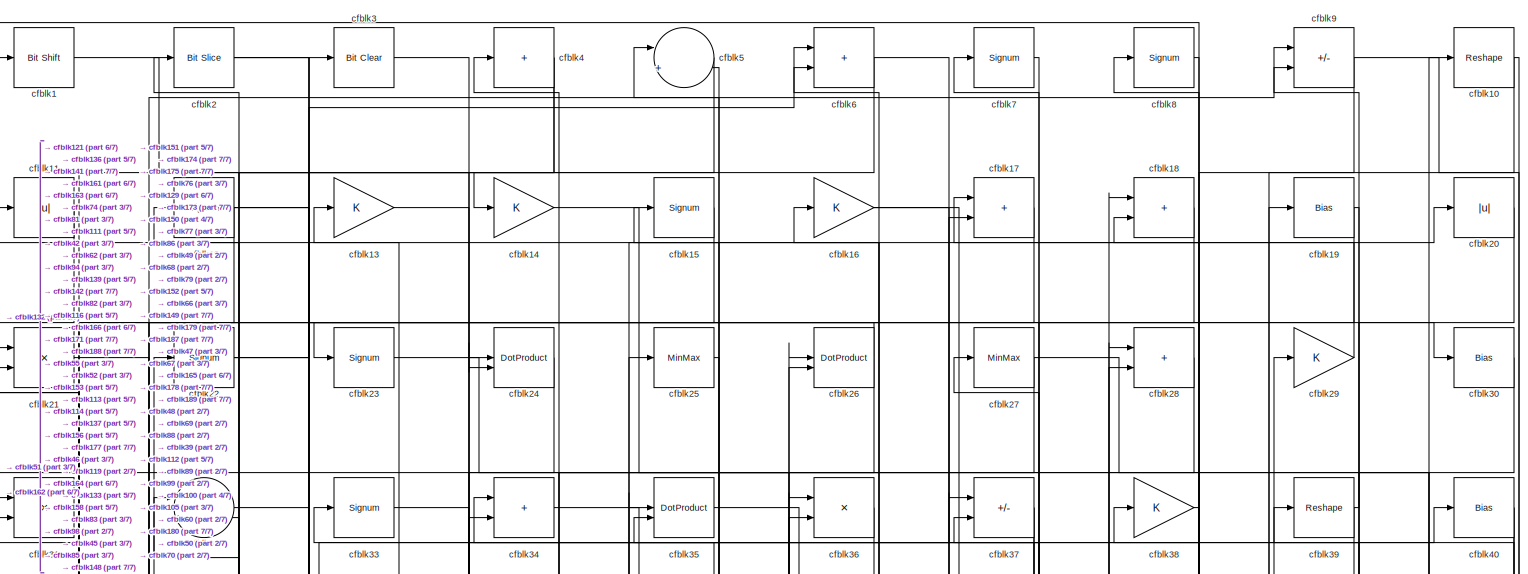
[diagram: root canvas - part 1/7, full width, top band]
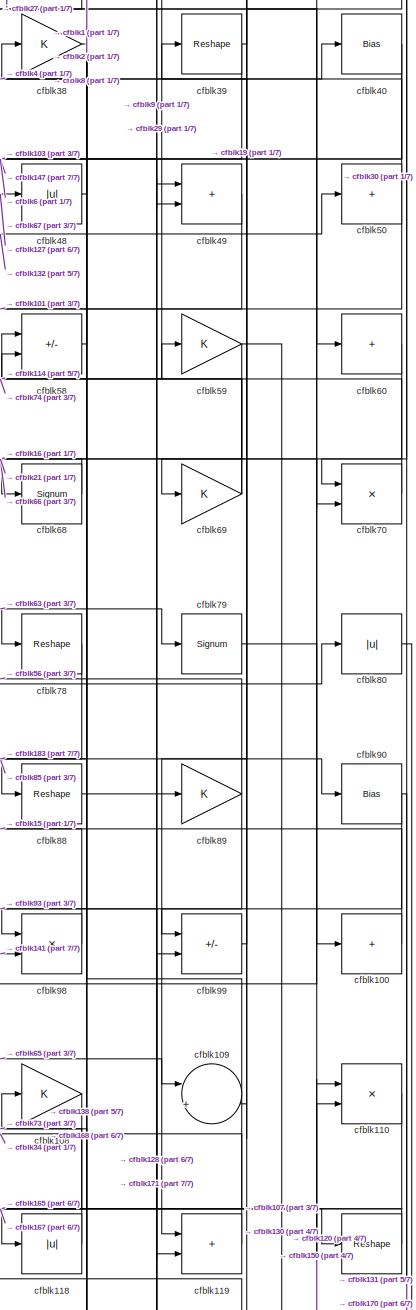
[diagram: root canvas - part 2/7, middle right region]
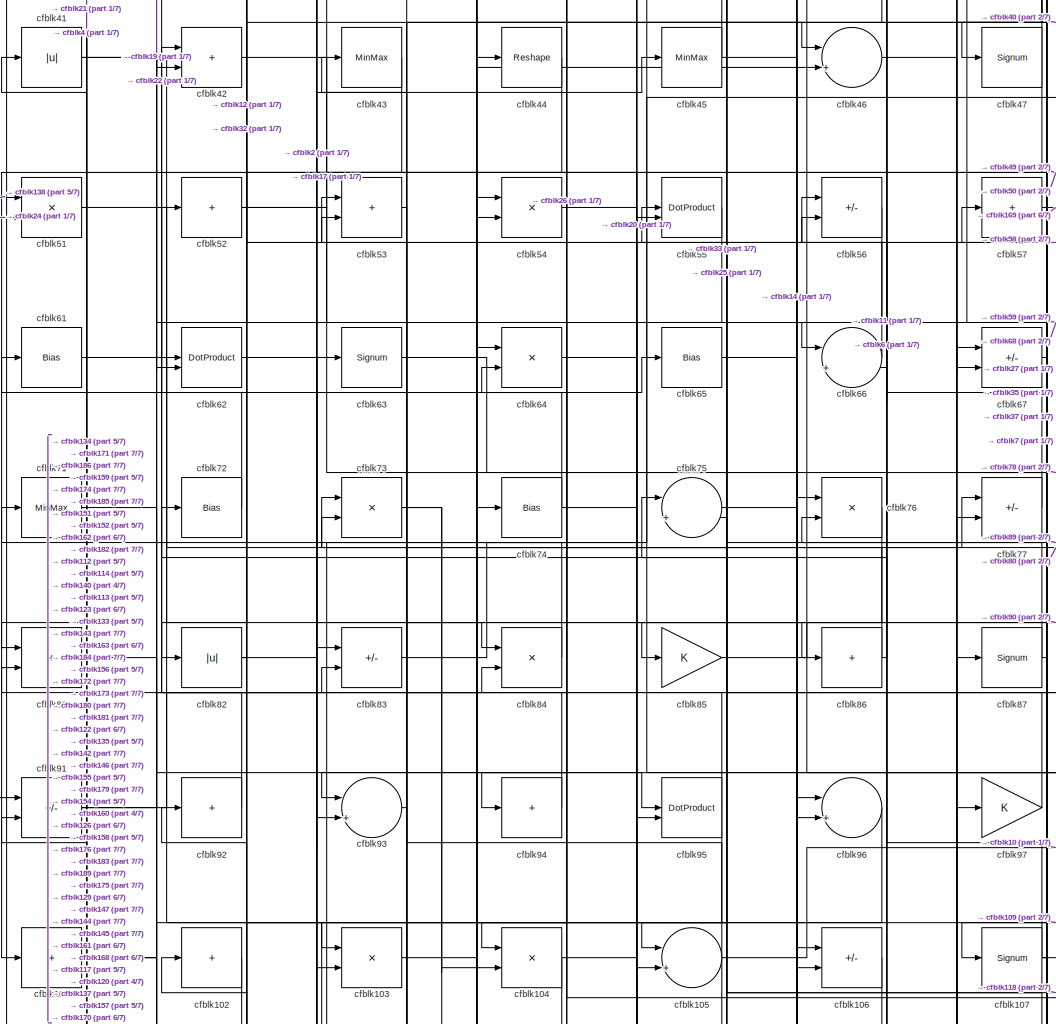
[diagram: root canvas - part 3/7, central region]
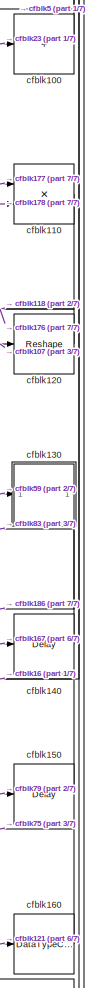
[diagram: root canvas - part 4/7, middle right region]
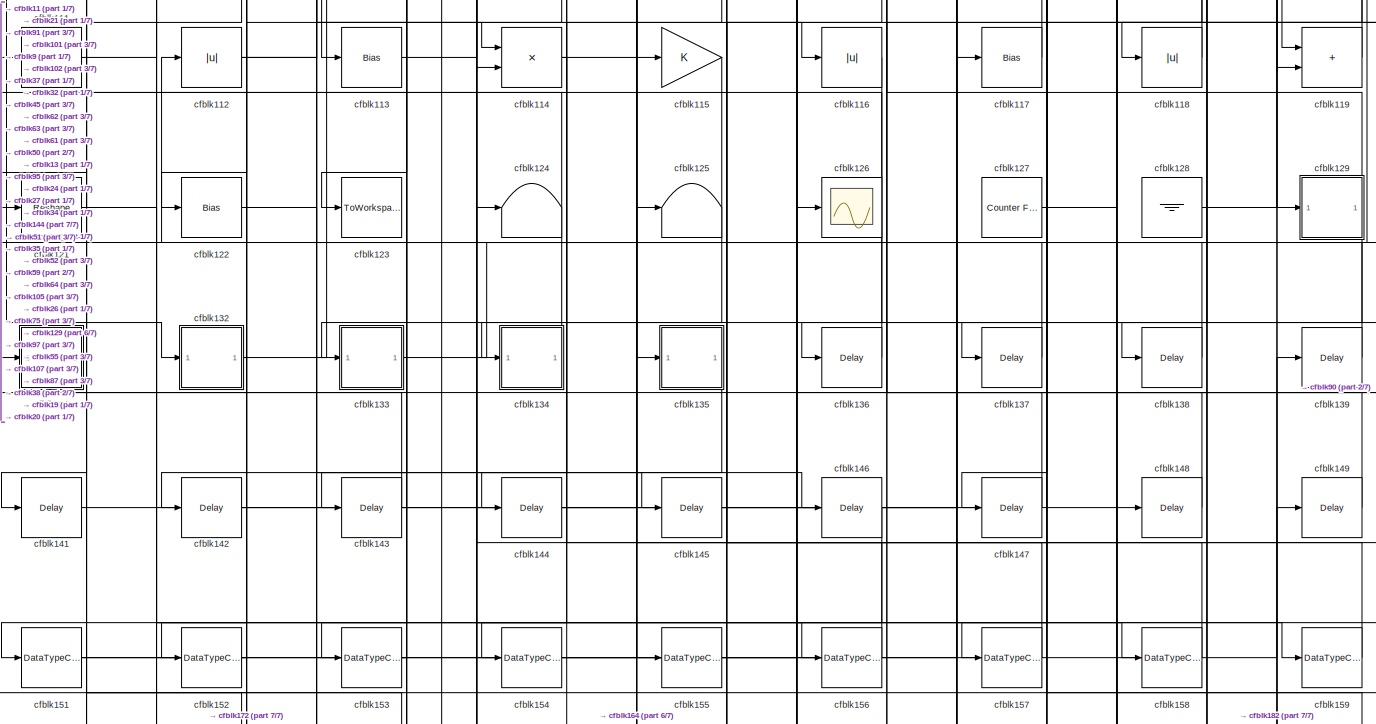
[diagram: root canvas - part 5/7, full width, bottom band]
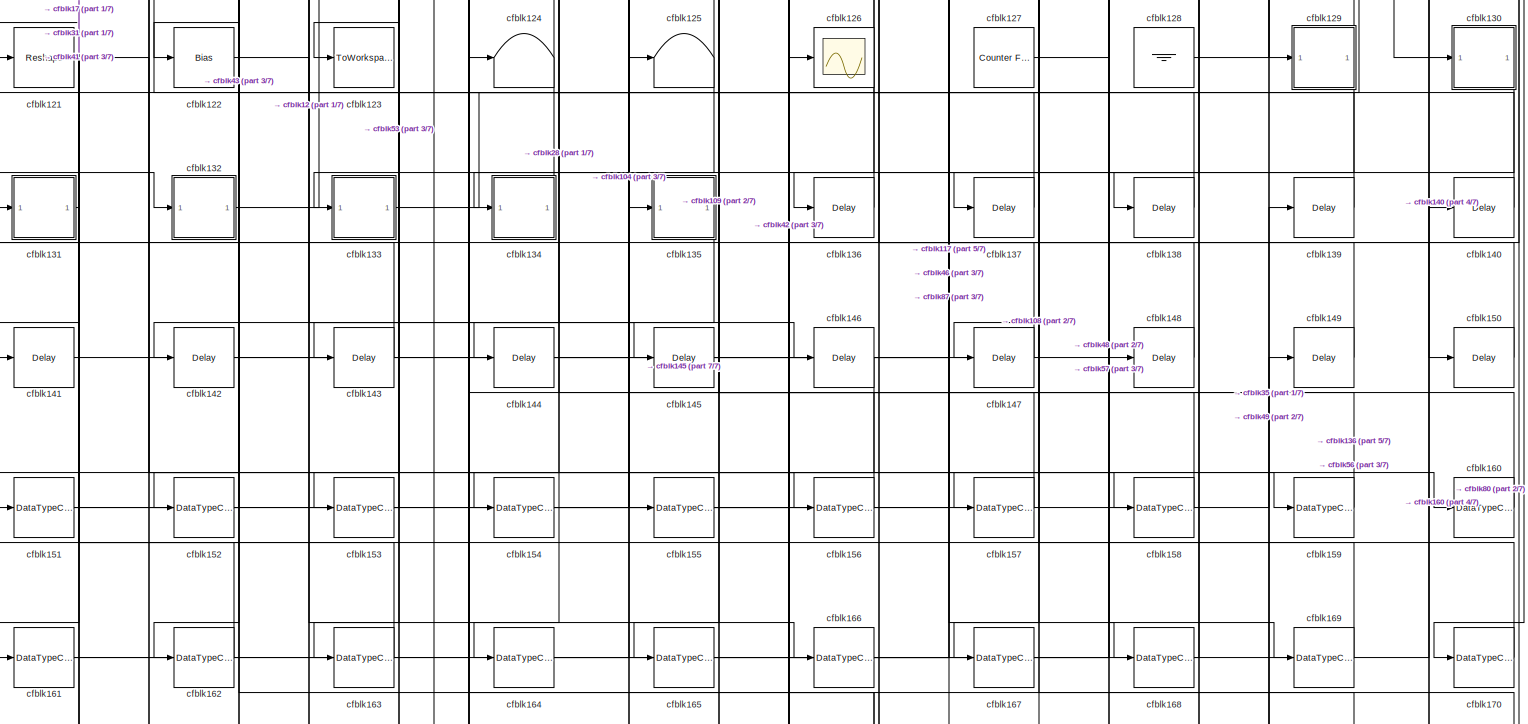
[diagram: root canvas - part 6/7, full width, bottom band]
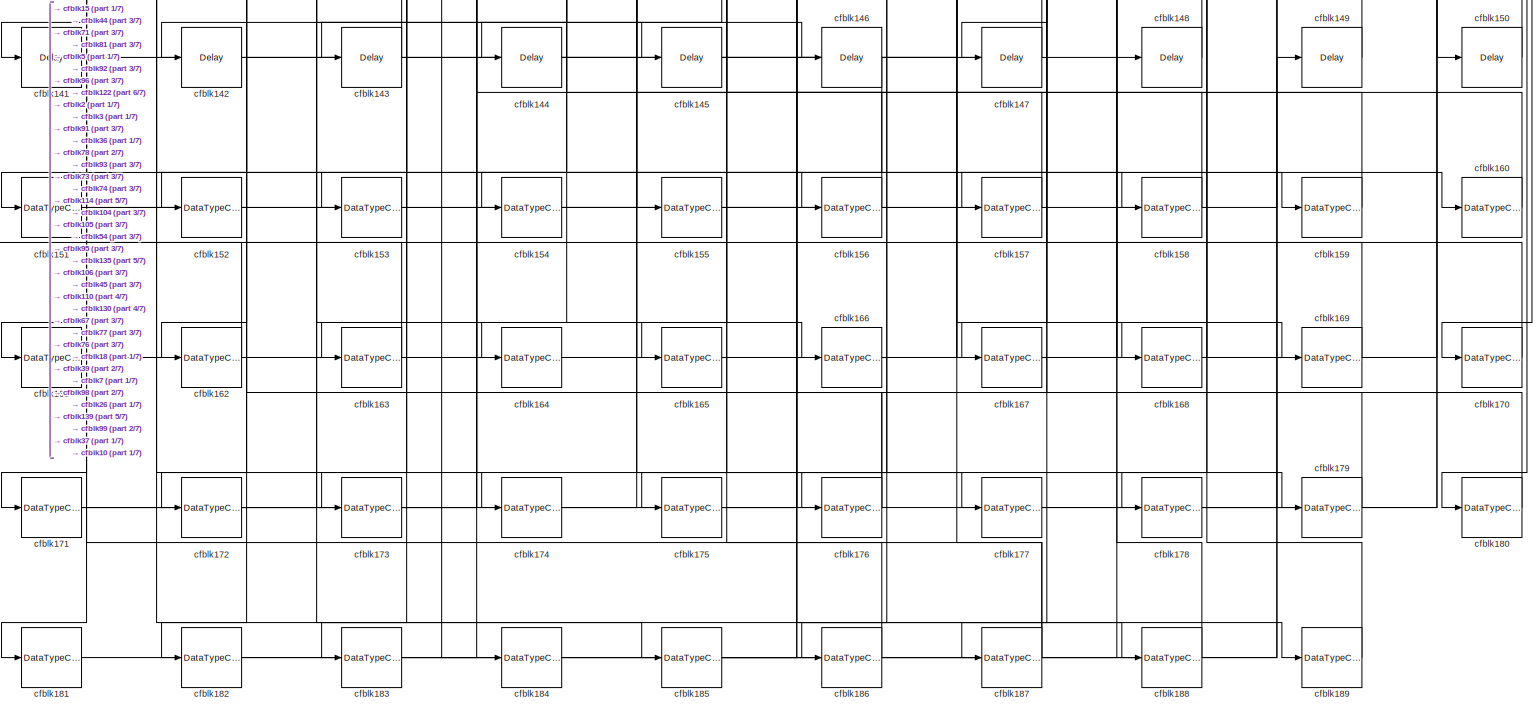
[diagram: root canvas - part 7/7, full width, bottom band]
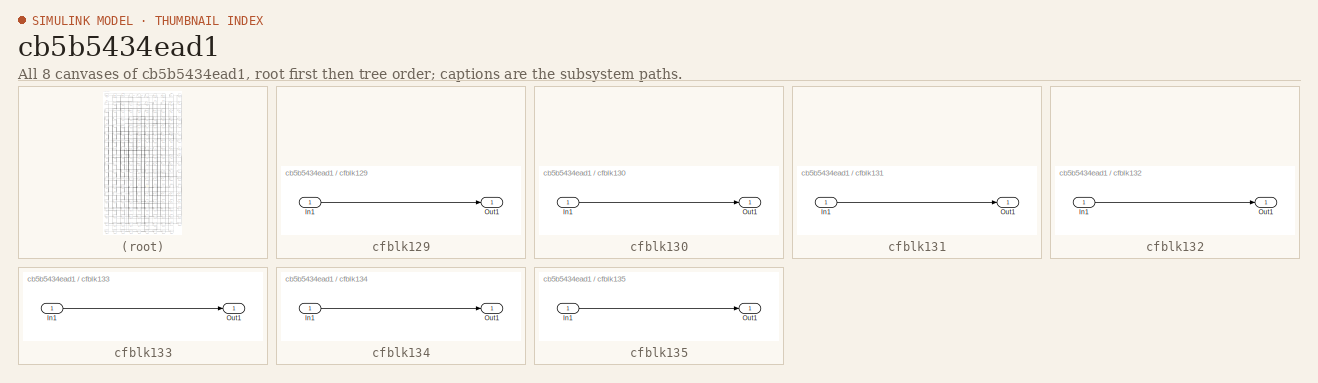
[diagram: thumbnail index - all 8 canvases of the model, root first then tree order]
MODEL slx_cb5b5434ead1
KIND model
CONFIG AbsTol = auto
CONFIG EnableMultiTasking = off
CONFIG FixedStep = auto
CONFIG MaxStep = auto
CONFIG MinStep = auto
CONFIG RelTol = 1e-3
CONFIG SampleTimeConstraint = Unconstrained
CONFIG SolverName = VariableStepAuto
CONFIG StartTime = 0.0
CONFIG StopTime = 10.0
BLOCK [Reference] cfblk1  REF=hdlsllib/Logic and Bit
Operations/Bit Shift
  SourceBlock = hdlsllib/Logic and Bit\nOperations/Bit Shift
  SourceType = Bit Shift
BLOCK [Reshape] cfblk10
BLOCK [Sum] cfblk100
  IconShape = rectangular
  Inputs = +
BLOCK [Sum] cfblk101
  IconShape = rectangular
  Inputs = +
BLOCK [Sum] cfblk102
  IconShape = rectangular
  Inputs = +
BLOCK [Product] cfblk103
  Inputs = */
  RndMeth = Zero
  SaturateOnIntegerOverflow = on
BLOCK [Product] cfblk104
  Inputs = */
  RndMeth = Zero
  SaturateOnIntegerOverflow = on
BLOCK [Sum] cfblk105
  Inputs = |++
BLOCK [Sum] cfblk106
  IconShape = rectangular
  Inputs = +-
BLOCK [Signum] cfblk107
BLOCK [Gain] cfblk108
BLOCK [Sum] cfblk109
  Inputs = |++
BLOCK [Abs] cfblk11
  SaturateOnIntegerOverflow = off
BLOCK [Product] cfblk110
  Inputs = */
  RndMeth = Zero
  SaturateOnIntegerOverflow = on
BLOCK [Sum] cfblk111
  IconShape = rectangular
  Inputs = +
BLOCK [Abs] cfblk112
  SaturateOnIntegerOverflow = off
BLOCK [Bias] cfblk113
  Bias = 0.0
  SaturateOnIntegerOverflow = off
BLOCK [Product] cfblk114
  Inputs = */
  RndMeth = Zero
  SaturateOnIntegerOverflow = on
BLOCK [Gain] cfblk115
BLOCK [Abs] cfblk116
  SaturateOnIntegerOverflow = off
BLOCK [Bias] cfblk117
  Bias = 0.0
  SaturateOnIntegerOverflow = off
BLOCK [Abs] cfblk118
  SaturateOnIntegerOverflow = off
BLOCK [Sum] cfblk119
  IconShape = rectangular
BLOCK [Signum] cfblk12
BLOCK [Reshape] cfblk120
BLOCK [Reshape] cfblk121
BLOCK [Bias] cfblk122
  Bias = 0.0
  SaturateOnIntegerOverflow = off
BLOCK [ToWorkspace] cfblk123
  MaxDataPoints = inf
  SampleTime = -1
  SaveFormat = Timeseries
  VariableName = simout
BLOCK [Terminator] cfblk124
BLOCK [Terminator] cfblk125
BLOCK [Scope] cfblk126
  Floating = off
  NumInputPorts = 1
  ScopeSpecificationString = Simulink.scopes.TimeScopeBlockCfg('CurrentConfiguration', extmgr.ConfigurationSet(extmgr.Configuration('Core','General UI',true),extmgr.Configuration('Core','Source UI',true),extmgr.Configuration('Sources','WiredSimulink',true,'DataLoggingVariableName','ScopeData2','DataLoggingSaveFormat','Array','DataLoggingLimitDataPoints',true,'DataLoggingDecimation','1'),extmgr.Configuration('Visuals','Time Do...<+868ch>
BLOCK [Reference] cfblk127  REF=hdlsllib/Sources/Counter
Free-Running
  SourceBlock = hdlsllib/Sources/Counter\nFree-Running
  SourceType = Counter Free-Running
BLOCK [Ground] cfblk128
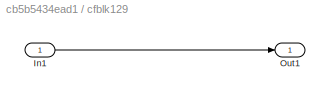
BLOCK [SubSystem] cfblk129
  LibrarySourceBlock = hdlsllib/Ports &\nSubsystems/Subsystem
BLOCK [Inport] cfblk129/In1
BLOCK [Outport] cfblk129/Out1
BLOCK [Gain] cfblk13
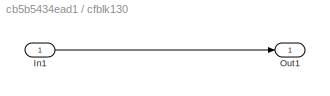
BLOCK [SubSystem] cfblk130
  LibrarySourceBlock = hdlsllib/Ports &\nSubsystems/Subsystem
BLOCK [Inport] cfblk130/In1
BLOCK [Outport] cfblk130/Out1
BLOCK [SubSystem] cfblk131
  LibrarySourceBlock = hdlsllib/Ports &\nSubsystems/Subsystem
BLOCK [Inport] cfblk131/In1
BLOCK [Outport] cfblk131/Out1
BLOCK [SubSystem] cfblk132
  LibrarySourceBlock = hdlsllib/Ports &\nSubsystems/Subsystem
BLOCK [Inport] cfblk132/In1
BLOCK [Outport] cfblk132/Out1
BLOCK [SubSystem] cfblk133
  LibrarySourceBlock = hdlsllib/Ports &\nSubsystems/Subsystem
BLOCK [Inport] cfblk133/In1
BLOCK [Outport] cfblk133/Out1
BLOCK [SubSystem] cfblk134
  LibrarySourceBlock = hdlsllib/Ports &\nSubsystems/Subsystem
BLOCK [Inport] cfblk134/In1
BLOCK [Outport] cfblk134/Out1
BLOCK [SubSystem] cfblk135
  LibrarySourceBlock = hdlsllib/Ports &\nSubsystems/Subsystem
BLOCK [Inport] cfblk135/In1
BLOCK [Outport] cfblk135/Out1
BLOCK [Delay] cfblk136
  InputPortMap = u0
  SampleTime = 1
BLOCK [Delay] cfblk137
  InputPortMap = u0
  SampleTime = 1
BLOCK [Delay] cfblk138
  InputPortMap = u0
  SampleTime = 1
BLOCK [Delay] cfblk139
  InputPortMap = u0
  SampleTime = 1
BLOCK [Gain] cfblk14
BLOCK [Delay] cfblk140
  InputPortMap = u0
  SampleTime = 1
BLOCK [Delay] cfblk141
  InputPortMap = u0
  SampleTime = 1
BLOCK [Delay] cfblk142
  InputPortMap = u0
  SampleTime = 1
BLOCK [Delay] cfblk143
  InputPortMap = u0
  SampleTime = 1
BLOCK [Delay] cfblk144
  InputPortMap = u0
  SampleTime = 1
BLOCK [Delay] cfblk145
  InputPortMap = u0
  SampleTime = 1
BLOCK [Delay] cfblk146
  InputPortMap = u0
  SampleTime = 1
BLOCK [Delay] cfblk147
  InputPortMap = u0
  SampleTime = 1
BLOCK [Delay] cfblk148
  InputPortMap = u0
  SampleTime = 1
BLOCK [Delay] cfblk149
  InputPortMap = u0
  SampleTime = 1
BLOCK [Signum] cfblk15
BLOCK [Delay] cfblk150
  InputPortMap = u0
  SampleTime = 1
BLOCK [DataTypeConversion] cfblk151
  RndMeth = Floor
  SaturateOnIntegerOverflow = off
BLOCK [DataTypeConversion] cfblk152
  OutDataTypeStr = uint8
  RndMeth = Floor
  SaturateOnIntegerOverflow = off
BLOCK [DataTypeConversion] cfblk153
  OutDataTypeStr = uint8
  RndMeth = Floor
  SaturateOnIntegerOverflow = off
BLOCK [DataTypeConversion] cfblk154
  OutDataTypeStr = uint8
  RndMeth = Floor
  SaturateOnIntegerOverflow = off
BLOCK [DataTypeConversion] cfblk155
  OutDataTypeStr = uint8
  RndMeth = Floor
  SaturateOnIntegerOverflow = off
BLOCK [DataTypeConversion] cfblk156
  OutDataTypeStr = uint8
  RndMeth = Floor
  SaturateOnIntegerOverflow = off
BLOCK [DataTypeConversion] cfblk157
  OutDataTypeStr = uint8
  RndMeth = Floor
  SaturateOnIntegerOverflow = off
BLOCK [DataTypeConversion] cfblk158
  OutDataTypeStr = uint8
  RndMeth = Floor
  SaturateOnIntegerOverflow = off
BLOCK [DataTypeConversion] cfblk159
  OutDataTypeStr = uint8
  RndMeth = Floor
  SaturateOnIntegerOverflow = off
BLOCK [Gain] cfblk16
BLOCK [DataTypeConversion] cfblk160
  OutDataTypeStr = uint8
  RndMeth = Floor
  SaturateOnIntegerOverflow = off
BLOCK [DataTypeConversion] cfblk161
  RndMeth = Floor
  SaturateOnIntegerOverflow = off
BLOCK [DataTypeConversion] cfblk162
  OutDataTypeStr = uint8
  RndMeth = Floor
  SaturateOnIntegerOverflow = off
BLOCK [DataTypeConversion] cfblk163
  OutDataTypeStr = uint8
  RndMeth = Floor
  SaturateOnIntegerOverflow = off
BLOCK [DataTypeConversion] cfblk164
  RndMeth = Floor
  SaturateOnIntegerOverflow = off
BLOCK [DataTypeConversion] cfblk165
  OutDataTypeStr = uint8
  RndMeth = Floor
  SaturateOnIntegerOverflow = off
BLOCK [DataTypeConversion] cfblk166
  OutDataTypeStr = uint8
  RndMeth = Floor
  SaturateOnIntegerOverflow = off
BLOCK [DataTypeConversion] cfblk167
  OutDataTypeStr = uint8
  RndMeth = Floor
  SaturateOnIntegerOverflow = off
BLOCK [DataTypeConversion] cfblk168
  OutDataTypeStr = uint8
  RndMeth = Floor
  SaturateOnIntegerOverflow = off
BLOCK [DataTypeConversion] cfblk169
  OutDataTypeStr = uint8
  RndMeth = Floor
  SaturateOnIntegerOverflow = off
BLOCK [Sum] cfblk17
  IconShape = rectangular
BLOCK [DataTypeConversion] cfblk170
  OutDataTypeStr = uint8
  RndMeth = Floor
  SaturateOnIntegerOverflow = off
BLOCK [DataTypeConversion] cfblk171
  RndMeth = Floor
  SaturateOnIntegerOverflow = off
BLOCK [DataTypeConversion] cfblk172
  OutDataTypeStr = uint8
  RndMeth = Floor
  SaturateOnIntegerOverflow = off
BLOCK [DataTypeConversion] cfblk173
  OutDataTypeStr = uint8
  RndMeth = Floor
  SaturateOnIntegerOverflow = off
BLOCK [DataTypeConversion] cfblk174
  OutDataTypeStr = uint8
  RndMeth = Floor
  SaturateOnIntegerOverflow = off
BLOCK [DataTypeConversion] cfblk175
  OutDataTypeStr = uint8
  RndMeth = Floor
  SaturateOnIntegerOverflow = off
BLOCK [DataTypeConversion] cfblk176
  RndMeth = Floor
  SaturateOnIntegerOverflow = off
BLOCK [DataTypeConversion] cfblk177
  OutDataTypeStr = uint8
  RndMeth = Floor
  SaturateOnIntegerOverflow = off
BLOCK [DataTypeConversion] cfblk178
  OutDataTypeStr = uint8
  RndMeth = Floor
  SaturateOnIntegerOverflow = off
BLOCK [DataTypeConversion] cfblk179
  OutDataTypeStr = uint8
  RndMeth = Floor
  SaturateOnIntegerOverflow = off
BLOCK [Sum] cfblk18
  IconShape = rectangular
BLOCK [DataTypeConversion] cfblk180
  OutDataTypeStr = uint8
  RndMeth = Floor
  SaturateOnIntegerOverflow = off
BLOCK [DataTypeConversion] cfblk181
  OutDataTypeStr = uint8
  RndMeth = Floor
  SaturateOnIntegerOverflow = off
BLOCK [DataTypeConversion] cfblk182
  OutDataTypeStr = uint8
  RndMeth = Floor
  SaturateOnIntegerOverflow = off
BLOCK [DataTypeConversion] cfblk183
  OutDataTypeStr = uint8
  RndMeth = Floor
  SaturateOnIntegerOverflow = off
BLOCK [DataTypeConversion] cfblk184
  OutDataTypeStr = uint8
  RndMeth = Floor
  SaturateOnIntegerOverflow = off
BLOCK [DataTypeConversion] cfblk185
  RndMeth = Floor
  SaturateOnIntegerOverflow = off
BLOCK [DataTypeConversion] cfblk186
  OutDataTypeStr = uint8
  RndMeth = Floor
  SaturateOnIntegerOverflow = off
BLOCK [DataTypeConversion] cfblk187
  RndMeth = Floor
  SaturateOnIntegerOverflow = off
BLOCK [DataTypeConversion] cfblk188
  OutDataTypeStr = uint8
  RndMeth = Floor
  SaturateOnIntegerOverflow = off
BLOCK [DataTypeConversion] cfblk189
  OutDataTypeStr = uint8
  RndMeth = Floor
  SaturateOnIntegerOverflow = off
BLOCK [Bias] cfblk19
  Bias = 0.0
  SaturateOnIntegerOverflow = off
BLOCK [Reference] cfblk2  REF=hdlsllib/Logic and Bit
Operations/Bit Slice
  SourceBlock = hdlsllib/Logic and Bit\nOperations/Bit Slice
  SourceType = Bit Slice
BLOCK [Abs] cfblk20
  SaturateOnIntegerOverflow = off
BLOCK [Product] cfblk21
  Inputs = */
  RndMeth = Zero
  SaturateOnIntegerOverflow = on
BLOCK [Signum] cfblk22
BLOCK [Signum] cfblk23
BLOCK [DotProduct] cfblk24
  OutDataTypeStr = Inherit: Inherit via internal rule
BLOCK [MinMax] cfblk25
BLOCK [DotProduct] cfblk26
  OutDataTypeStr = Inherit: Inherit via internal rule
BLOCK [MinMax] cfblk27
BLOCK [Sum] cfblk28
  IconShape = rectangular
BLOCK [Gain] cfblk29
BLOCK [Reference] cfblk3  REF=simulink/Logic and Bit
Operations/Bit Clear
  LibrarySourceBlock = hdlsllib/Logic and Bit\nOperations/Bit Clear
  SourceBlock = simulink/Logic and Bit\nOperations/Bit Clear
  SourceType = Bit Clear
BLOCK [Bias] cfblk30
  Bias = 0.0
  SaturateOnIntegerOverflow = off
BLOCK [Product] cfblk31
  Inputs = */
  RndMeth = Zero
  SaturateOnIntegerOverflow = on
BLOCK [Sum] cfblk32
  Inputs = |++
BLOCK [Signum] cfblk33
BLOCK [Sum] cfblk34
  IconShape = rectangular
BLOCK [DotProduct] cfblk35
  OutDataTypeStr = Inherit: Inherit via internal rule
BLOCK [Product] cfblk36
  Inputs = */
  RndMeth = Zero
  SaturateOnIntegerOverflow = on
BLOCK [Sum] cfblk37
  IconShape = rectangular
  Inputs = +-
BLOCK [Gain] cfblk38
BLOCK [Reshape] cfblk39
BLOCK [Sum] cfblk4
  IconShape = rectangular
  Inputs = +
BLOCK [Bias] cfblk40
  Bias = 0.0
  SaturateOnIntegerOverflow = off
BLOCK [Abs] cfblk41
  SaturateOnIntegerOverflow = off
BLOCK [Sum] cfblk42
  IconShape = rectangular
BLOCK [MinMax] cfblk43
BLOCK [Reshape] cfblk44
BLOCK [MinMax] cfblk45
BLOCK [Sum] cfblk46
  Inputs = |++
BLOCK [Signum] cfblk47
BLOCK [Abs] cfblk48
  SaturateOnIntegerOverflow = off
BLOCK [Sum] cfblk49
  IconShape = rectangular
BLOCK [Sum] cfblk5
  Inputs = |++
BLOCK [Sum] cfblk50
  IconShape = rectangular
  Inputs = +
BLOCK [Product] cfblk51
  Inputs = */
  RndMeth = Zero
  SaturateOnIntegerOverflow = on
BLOCK [Sum] cfblk52
  IconShape = rectangular
  Inputs = +
BLOCK [Sum] cfblk53
  IconShape = rectangular
BLOCK [Product] cfblk54
  Inputs = */
  RndMeth = Zero
  SaturateOnIntegerOverflow = on
BLOCK [DotProduct] cfblk55
  OutDataTypeStr = Inherit: Inherit via internal rule
BLOCK [Sum] cfblk56
  IconShape = rectangular
  Inputs = +-
BLOCK [Sum] cfblk57
  IconShape = rectangular
  Inputs = +
BLOCK [Sum] cfblk58
  IconShape = rectangular
  Inputs = +-
BLOCK [Gain] cfblk59
BLOCK [Sum] cfblk6
  IconShape = rectangular
BLOCK [Sum] cfblk60
  IconShape = rectangular
  Inputs = +
BLOCK [Bias] cfblk61
  Bias = 0.0
  SaturateOnIntegerOverflow = off
BLOCK [DotProduct] cfblk62
  OutDataTypeStr = Inherit: Inherit via internal rule
BLOCK [Signum] cfblk63
BLOCK [Product] cfblk64
  Inputs = */
  RndMeth = Zero
  SaturateOnIntegerOverflow = on
BLOCK [Bias] cfblk65
  Bias = 0.0
  SaturateOnIntegerOverflow = off
BLOCK [Sum] cfblk66
  Inputs = |++
BLOCK [Sum] cfblk67
  IconShape = rectangular
  Inputs = +-
BLOCK [Signum] cfblk68
BLOCK [Gain] cfblk69
BLOCK [Signum] cfblk7
BLOCK [Product] cfblk70
  Inputs = */
  RndMeth = Zero
  SaturateOnIntegerOverflow = on
BLOCK [MinMax] cfblk71
BLOCK [Bias] cfblk72
  Bias = 0.0
  SaturateOnIntegerOverflow = off
BLOCK [Product] cfblk73
  Inputs = */
  RndMeth = Zero
  SaturateOnIntegerOverflow = on
BLOCK [Bias] cfblk74
  Bias = 0.0
  SaturateOnIntegerOverflow = off
BLOCK [Sum] cfblk75
  Inputs = |++
BLOCK [Product] cfblk76
  Inputs = */
  RndMeth = Zero
  SaturateOnIntegerOverflow = on
BLOCK [Sum] cfblk77
  IconShape = rectangular
  Inputs = +-
BLOCK [Reshape] cfblk78
BLOCK [Signum] cfblk79
BLOCK [Signum] cfblk8
BLOCK [Abs] cfblk80
  SaturateOnIntegerOverflow = off
BLOCK [Sum] cfblk81
  IconShape = rectangular
BLOCK [Abs] cfblk82
  SaturateOnIntegerOverflow = off
BLOCK [Sum] cfblk83
  IconShape = rectangular
  Inputs = +-
BLOCK [Product] cfblk84
  Inputs = */
  RndMeth = Zero
  SaturateOnIntegerOverflow = on
BLOCK [Gain] cfblk85
BLOCK [Sum] cfblk86
  IconShape = rectangular
  Inputs = +
BLOCK [Signum] cfblk87
BLOCK [Reshape] cfblk88
BLOCK [Gain] cfblk89
BLOCK [Sum] cfblk9
  IconShape = rectangular
  Inputs = +-
BLOCK [Bias] cfblk90
  Bias = 0.0
  SaturateOnIntegerOverflow = off
BLOCK [Sum] cfblk91
  IconShape = rectangular
  Inputs = +-
BLOCK [Sum] cfblk92
  IconShape = rectangular
  Inputs = +
BLOCK [Sum] cfblk93
  Inputs = |++
BLOCK [Sum] cfblk94
  IconShape = rectangular
  Inputs = +
BLOCK [DotProduct] cfblk95
  OutDataTypeStr = Inherit: Inherit via internal rule
BLOCK [Sum] cfblk96
  Inputs = |++
BLOCK [Gain] cfblk97
BLOCK [Product] cfblk98
  Inputs = */
  RndMeth = Zero
  SaturateOnIntegerOverflow = on
BLOCK [Sum] cfblk99
  IconShape = rectangular
  Inputs = +-
LINE cfblk100:1 -> cfblk5:1
NET cfblk101:1 -> cfblk106:2, cfblk159:1
LINE cfblk102:1 -> cfblk151:1
LINE cfblk103:1 -> cfblk80:1
NET cfblk104:1 -> cfblk122:1, cfblk146:1
NET cfblk105:1 -> cfblk10:1, cfblk154:1, cfblk53:1
LINE cfblk106:1 -> cfblk175:1
NET cfblk107:1 -> cfblk120:1, cfblk157:1, cfblk72:1
LINE cfblk108:1 -> cfblk167:1
NET cfblk109:1 -> cfblk165:1, cfblk58:2
NET cfblk10:1 -> cfblk178:1, cfblk180:1
LINE cfblk110:1 -> cfblk176:1
LINE cfblk111:1 -> cfblk9:1
NET cfblk112:1 -> cfblk45:1, cfblk63:1
LINE cfblk113:1 -> cfblk34:2
NET cfblk114:1 -> cfblk144:1, cfblk59:1
LINE cfblk115:1 -> cfblk153:1
LINE cfblk116:1 -> cfblk134:1
LINE cfblk117:1 -> cfblk55:1
LINE cfblk118:1 -> cfblk73:2
LINE cfblk119:1 -> cfblk34:1
LINE cfblk11:1 -> cfblk132:1
LINE cfblk120:1 -> cfblk118:1
LINE cfblk121:1 -> cfblk160:1
LINE cfblk122:1 -> cfblk145:1
LINE cfblk127:1 -> cfblk48:1
LINE cfblk128:1 -> cfblk49:1
LINE cfblk129/In1:1 -> cfblk129/Out1:1
NET cfblk129:1 -> cfblk136:1, cfblk56:1
NET cfblk12:1 -> cfblk166:1, cfblk42:2, cfblk86:1
LINE cfblk130/In1:1 -> cfblk130/Out1:1
LINE cfblk130:1 -> cfblk186:1
LINE cfblk131/In1:1 -> cfblk131/Out1:1
LINE cfblk131:1 -> cfblk111:1
LINE cfblk132/In1:1 -> cfblk132/Out1:1
LINE cfblk132:1 -> cfblk50:1
LINE cfblk133/In1:1 -> cfblk133/Out1:1
LINE cfblk133:1 -> cfblk25:1
LINE cfblk134/In1:1 -> cfblk134/Out1:1
LINE cfblk134:1 -> cfblk91:2
LINE cfblk135/In1:1 -> cfblk135/Out1:1
LINE cfblk135:1 -> cfblk172:1
LINE cfblk136:1 -> cfblk21:2
LINE cfblk137:1 -> cfblk24:1
LINE cfblk138:1 -> cfblk51:1
LINE cfblk139:1 -> cfblk32:1
LINE cfblk13:1 -> cfblk156:1
LINE cfblk140:1 -> cfblk83:1
LINE cfblk141:1 -> cfblk98:2
LINE cfblk142:1 -> cfblk105:2
LINE cfblk143:1 -> cfblk91:1
LINE cfblk144:1 -> cfblk67:1
LINE cfblk145:1 -> cfblk77:2
LINE cfblk146:1 -> cfblk181:1
LINE cfblk147:1 -> cfblk76:2
LINE cfblk148:1 -> cfblk26:1
LINE cfblk149:1 -> cfblk37:2
LINE cfblk14:1 -> cfblk76:1
LINE cfblk150:1 -> cfblk16:1
NET cfblk151:1 -> cfblk19:1, cfblk26:2
LINE cfblk152:1 -> cfblk102:1
LINE cfblk153:1 -> cfblk13:1
LINE cfblk154:1 -> cfblk115:1
LINE cfblk155:1 -> cfblk97:1
LINE cfblk156:1 -> cfblk64:1
LINE cfblk157:1 -> cfblk64:2
LINE cfblk158:1 -> cfblk35:1
LINE cfblk159:1 -> cfblk75:1
LINE cfblk15:1 -> cfblk141:1
LINE cfblk160:1 -> cfblk75:2
NET cfblk161:1 -> cfblk124:1, cfblk87:1
LINE cfblk162:1 -> cfblk31:1
LINE cfblk163:1 -> cfblk31:2
NET cfblk164:1 -> cfblk117:1, cfblk125:1
LINE cfblk165:1 -> cfblk28:1
LINE cfblk166:1 -> cfblk28:2
LINE cfblk167:1 -> cfblk140:1
LINE cfblk168:1 -> cfblk108:1
LINE cfblk169:1 -> cfblk41:1
NET cfblk16:1 -> cfblk68:1, cfblk79:1
LINE cfblk170:1 -> cfblk57:1
NET cfblk171:1 -> cfblk3:1, cfblk95:2, cfblk99:2
LINE cfblk172:1 -> cfblk44:1
LINE cfblk173:1 -> cfblk74:1
LINE cfblk174:1 -> cfblk36:1
LINE cfblk175:1 -> cfblk36:2
NET cfblk176:1 -> cfblk106:1, cfblk92:1
LINE cfblk177:1 -> cfblk110:1
LINE cfblk178:1 -> cfblk110:2
LINE cfblk179:1 -> cfblk7:1
LINE cfblk17:1 -> cfblk121:1
LINE cfblk180:1 -> cfblk54:1
LINE cfblk181:1 -> cfblk54:2
LINE cfblk182:1 -> cfblk139:1
LINE cfblk183:1 -> cfblk96:1
LINE cfblk184:1 -> cfblk96:2
NET cfblk185:1 -> cfblk148:1, cfblk149:1
LINE cfblk186:1 -> cfblk71:1
NET cfblk187:1 -> cfblk37:1, cfblk5:2
LINE cfblk188:1 -> cfblk18:1
LINE cfblk189:1 -> cfblk18:2
LINE cfblk18:1 -> cfblk187:1
NET cfblk19:1 -> cfblk62:2, cfblk99:1
LINE cfblk1:1 -> cfblk24:2
LINE cfblk20:1 -> cfblk112:1
LINE cfblk21:1 -> cfblk70:2
NET cfblk22:1 -> cfblk30:1, cfblk6:2
LINE cfblk23:1 -> cfblk100:1
LINE cfblk24:1 -> cfblk51:2
LINE cfblk25:1 -> cfblk85:1
NET cfblk26:1 -> cfblk23:1, cfblk94:1
NET cfblk27:1 -> cfblk114:2, cfblk60:1
LINE cfblk28:1 -> cfblk164:1
LINE cfblk29:1 -> cfblk17:1
NET cfblk2:1 -> cfblk188:1, cfblk55:2
LINE cfblk30:1 -> cfblk89:1
LINE cfblk31:1 -> cfblk161:1
LINE cfblk32:1 -> cfblk116:1
LINE cfblk33:1 -> cfblk46:1
LINE cfblk34:1 -> cfblk98:1
LINE cfblk35:1 -> cfblk129:1
LINE cfblk36:1 -> cfblk173:1
NET cfblk37:1 -> cfblk152:1, cfblk66:2
LINE cfblk38:1 -> cfblk138:1
NET cfblk39:1 -> cfblk147:1, cfblk9:2
LINE cfblk3:1 -> cfblk177:1
NET cfblk40:1 -> cfblk103:1, cfblk67:2
NET cfblk41:1 -> cfblk84:1, cfblk95:1
LINE cfblk42:1 -> cfblk126:1
LINE cfblk43:1 -> cfblk162:1
LINE cfblk44:1 -> cfblk171:1
NET cfblk45:1 -> cfblk189:1, cfblk33:1
LINE cfblk46:1 -> cfblk168:1
NET cfblk47:1 -> cfblk35:2, cfblk82:1
LINE cfblk48:1 -> cfblk1:1
LINE cfblk49:1 -> cfblk101:1
NET cfblk4:1 -> cfblk14:1, cfblk81:1
NET cfblk50:1 -> cfblk103:2, cfblk4:1
LINE cfblk51:1 -> cfblk77:1
NET cfblk52:1 -> cfblk135:1, cfblk17:2
LINE cfblk53:1 -> cfblk123:1
LINE cfblk54:1 -> cfblk179:1
LINE cfblk55:1 -> cfblk104:1
LINE cfblk56:1 -> cfblk163:1
LINE cfblk57:1 -> cfblk169:1
LINE cfblk58:1 -> cfblk38:1
NET cfblk59:1 -> cfblk107:1, cfblk130:1
LINE cfblk5:1 -> cfblk142:1
LINE cfblk60:1 -> cfblk69:1
LINE cfblk61:1 -> cfblk113:1
NET cfblk62:1 -> cfblk114:1, cfblk93:2
NET cfblk63:1 -> cfblk40:1, cfblk46:2, cfblk78:1
LINE cfblk64:1 -> cfblk155:1
LINE cfblk65:1 -> cfblk109:1
LINE cfblk66:1 -> cfblk12:1
LINE cfblk67:1 -> cfblk27:1
LINE cfblk68:1 -> cfblk66:1
NET cfblk69:1 -> cfblk2:1, cfblk8:1
NET cfblk6:1 -> cfblk49:2, cfblk62:1
LINE cfblk70:1 -> cfblk29:1
LINE cfblk71:1 -> cfblk185:1
LINE cfblk72:1 -> cfblk42:1
NET cfblk73:1 -> cfblk104:2, cfblk184:1
NET cfblk74:1 -> cfblk21:1, cfblk58:1
LINE cfblk75:1 -> cfblk158:1
LINE cfblk76:1 -> cfblk105:1
LINE cfblk77:1 -> cfblk11:1
LINE cfblk78:1 -> cfblk183:1
LINE cfblk79:1 -> cfblk150:1
LINE cfblk7:1 -> cfblk47:1
LINE cfblk80:1 -> cfblk170:1
LINE cfblk81:1 -> cfblk174:1
NET cfblk82:1 -> cfblk32:2, cfblk65:1
LINE cfblk83:1 -> cfblk20:1
LINE cfblk84:1 -> cfblk61:1
LINE cfblk85:1 -> cfblk90:1
NET cfblk86:1 -> cfblk6:1, cfblk73:1
NET cfblk87:1 -> cfblk137:1, cfblk53:2
LINE cfblk88:1 -> cfblk119:1
NET cfblk89:1 -> cfblk56:2, cfblk93:1
LINE cfblk8:1 -> cfblk88:1
NET cfblk90:1 -> cfblk109:2, cfblk131:1
NET cfblk91:1 -> cfblk83:2, cfblk84:2
LINE cfblk92:1 -> cfblk81:2
LINE cfblk93:1 -> cfblk143:1
LINE cfblk94:1 -> cfblk22:1
NET cfblk95:1 -> cfblk133:1, cfblk43:1
LINE cfblk96:1 -> cfblk182:1
LINE cfblk97:1 -> cfblk52:1
LINE cfblk98:1 -> cfblk15:1
LINE cfblk99:1 -> cfblk39:1
NET cfblk9:1 -> cfblk119:2, cfblk70:1
note: NET lines group one-source signal fan-out (src -> all destinations, sorted); 1:1 wires keep LINE
